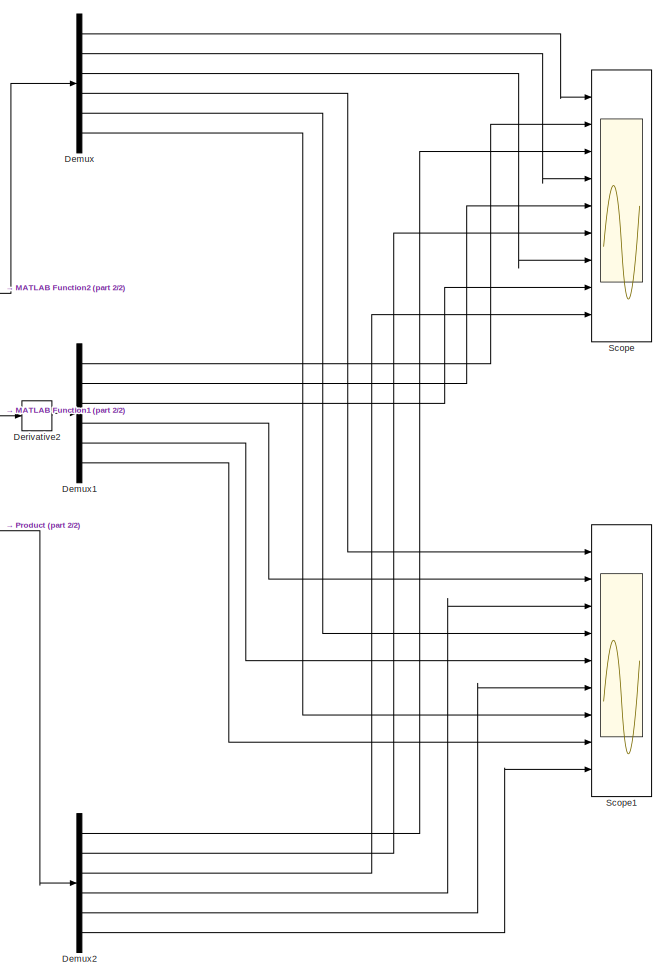
[diagram: root canvas - part 1/2, right side, full height]
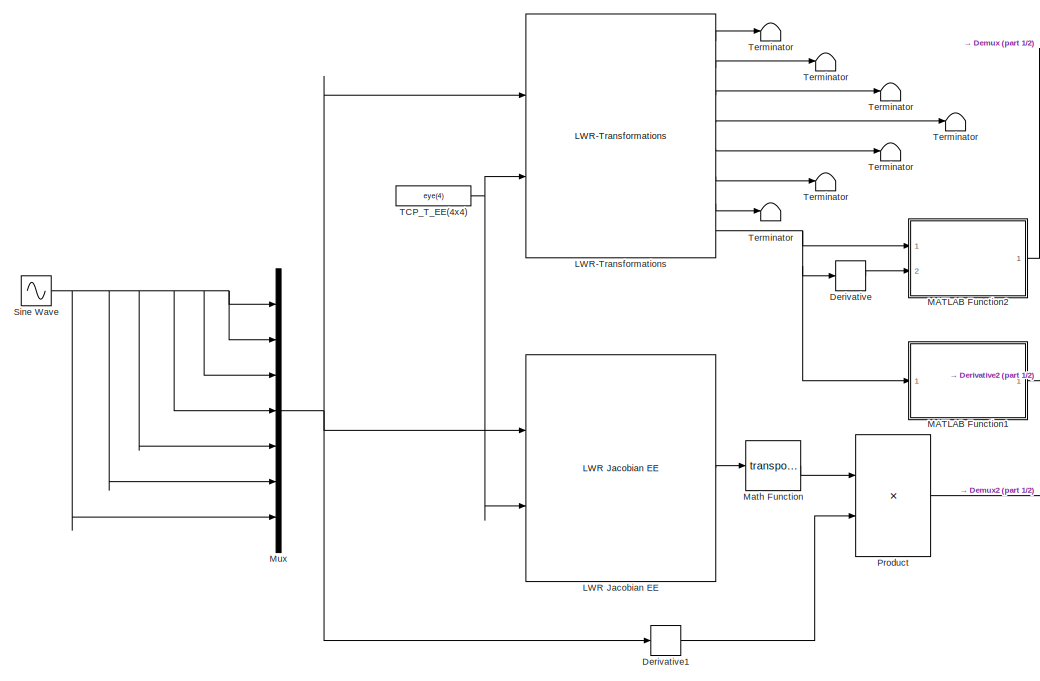
[diagram: root canvas - part 2/2, middle left region]
MODEL slx_8157c431108a
KIND model
CONFIG AbsTol = auto
CONFIG FixedStep = 0.001
CONFIG MaxStep = auto
CONFIG MinStep = auto
CONFIG RelTol = 1e-3
CONFIG SampleTimeConstraint = Unconstrained
CONFIG Solver = ode4
CONFIG SolverMode = Auto
CONFIG SolverName = ode4
CONFIG StartTime = 0.0
CONFIG StopTime = 10.0
BLOCK [Demux] Demux
  DisplayOption = bar
  Outputs = 6
  Ports = [1, 6]
BLOCK [Demux] Demux1
  DisplayOption = bar
  Outputs = 6
  Ports = [1, 6]
BLOCK [Demux] Demux2
  DisplayOption = bar
  Outputs = 6
  Ports = [1, 6]
BLOCK [Derivative] Derivative
BLOCK [Derivative] Derivative1
BLOCK [Derivative] Derivative2
BLOCK [Reference] LWR Jacobian EE  REF=lwr_dynamics/Kinematics/LWR Jacobian EE  (lib defined in mdl_dee2bea1b5f3)
  Ports = [2, 1]
  SourceBlock = lwr_dynamics/Kinematics/LWR Jacobian EE
BLOCK [Reference] LWR-Transformations  REF=lwr_dynamics/Kinematics/LWR-Transformations  (lib defined in mdl_dee2bea1b5f3)
  Ports = [2, 8]
  SourceBlock = lwr_dynamics/Kinematics/LWR-Transformations
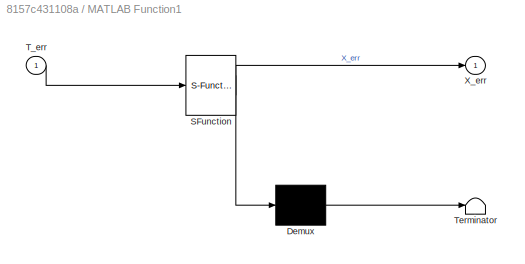
BLOCK [SubSystem] MATLAB Function1
  ErrorFcn = Stateflow.Translate.translate
  PermitHierarchicalResolution = ExplicitOnly
  Ports = [1, 1]
  RequestExecContextInheritance = off
  SFBlockType = MATLAB Function
  TreatAsAtomicUnit = on
  Variant = off
BLOCK [Demux] MATLAB Function1/ Demux 
  Outputs = 1
  Ports = [1, 1]
BLOCK [S-Function] MATLAB Function1/ SFunction 
  EnableBusSupport = on
  FunctionName = sf_sfun
  PortCounts = [1 2]
  Ports = [1, 2]
  SFunctionDeploymentMode = off
  Tag = Stateflow S-Function jacobianComparison 3
BLOCK [Terminator] MATLAB Function1/ Terminator 
BLOCK [Inport] MATLAB Function1/T_err
  IconDisplay = Port number
BLOCK [Outport] MATLAB Function1/X_err
  IconDisplay = Port number
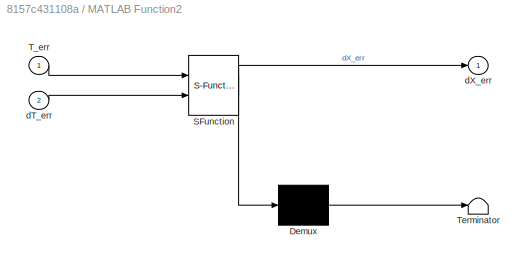
BLOCK [SubSystem] MATLAB Function2
  ErrorFcn = Stateflow.Translate.translate
  PermitHierarchicalResolution = ExplicitOnly
  Ports = [2, 1]
  RequestExecContextInheritance = off
  SFBlockType = MATLAB Function
  TreatAsAtomicUnit = on
  Variant = off
BLOCK [Demux] MATLAB Function2/ Demux 
  Outputs = 1
  Ports = [1, 1]
BLOCK [S-Function] MATLAB Function2/ SFunction 
  EnableBusSupport = on
  FunctionName = sf_sfun
  PortCounts = [2 2]
  Ports = [2, 2]
  SFunctionDeploymentMode = off
  Tag = Stateflow S-Function jacobianComparison 4
BLOCK [Terminator] MATLAB Function2/ Terminator 
BLOCK [Inport] MATLAB Function2/T_err
  IconDisplay = Port number
BLOCK [Inport] MATLAB Function2/dT_err
  IconDisplay = Port number
  Port = 2
BLOCK [Outport] MATLAB Function2/dX_err
  IconDisplay = Port number
BLOCK [Math] Math Function
  Operator = transpose
  Ports = [1, 1]
BLOCK [Mux] Mux
  DisplayOption = bar
  Inputs = 7
  Ports = [7, 1]
BLOCK [Product] Product
  InputSameDT = off
  Multiplication = Matrix(*)
  OutDataTypeStr = Inherit: Inherit via internal rule
  Ports = [2, 1]
  RndMeth = Floor
  SaturateOnIntegerOverflow = off
BLOCK [Scope] Scope
  NumInputPorts = 9
  Ports = [9]
  ScopeSpecificationString = Simulink.scopes.TimeScopeBlockCfg('CurrentConfiguration', extmgr.ConfigurationSet(extmgr.Configuration('Core','General UI',true),extmgr.Configuration('Core','Source UI',true),extmgr.Configuration('Sources','WiredSimulink',true,'DataLoggingSaveFormat','Array','DataLoggingDecimation','1'),extmgr.Configuration('Visuals','Time Domain',true,'SerializedDisplays',{struct('MinYLimReal','-0.61313','MaxYLim...<+7087ch>
BLOCK [Scope] Scope1
  NumInputPorts = 9
  Ports = [9]
  ScopeSpecificationString = Simulink.scopes.TimeScopeBlockCfg('CurrentConfiguration', extmgr.ConfigurationSet(extmgr.Configuration('Core','General UI',true),extmgr.Configuration('Core','Source UI',true),extmgr.Configuration('Sources','WiredSimulink',true,'DataLoggingSaveFormat','Array','DataLoggingDecimation','1','DataLoggingVariableName','ScopeData1','DataLoggingMaxPoints','500000'),extmgr.Configuration('Visuals','Time Doma...<+7194ch>
BLOCK [Sin] Sine Wave
  Bias = 0.1
  Ports = [0, 1]
  SampleTime = 0
BLOCK [Constant] TCP_T_EE(4x4)
  Value = eye(4)
BLOCK [Terminator] Terminator
BLOCK [Terminator] Terminator 
BLOCK [Terminator] Terminator  
BLOCK [Terminator] Terminator   
BLOCK [Terminator] Terminator    
BLOCK [Terminator] Terminator     
BLOCK [Terminator] Terminator      
LINE Demux1:1 -> Scope:2
LINE Demux1:2 -> Scope:5
LINE Demux1:3 -> Scope:8
LINE Demux1:4 -> Scope1:2
LINE Demux1:5 -> Scope1:5
LINE Demux1:6 -> Scope1:8
LINE Demux2:1 -> Scope:3
LINE Demux2:2 -> Scope:6
LINE Demux2:3 -> Scope:9
LINE Demux2:4 -> Scope1:3
LINE Demux2:5 -> Scope1:6
LINE Demux2:6 -> Scope1:9
LINE Demux:1 -> Scope:1
LINE Demux:2 -> Scope:4
LINE Demux:3 -> Scope:7
LINE Demux:4 -> Scope1:1
LINE Demux:5 -> Scope1:4
LINE Demux:6 -> Scope1:7
LINE Derivative1:1 -> Product:2
LINE Derivative2:1 -> Demux1:1
LINE Derivative:1 -> MATLAB Function2:2
LINE LWR Jacobian EE:1 -> Math Function:1
LINE LWR-Transformations:1 -> Terminator:1
LINE LWR-Transformations:2 -> Terminator :1
LINE LWR-Transformations:3 -> Terminator  :1
LINE LWR-Transformations:4 -> Terminator   :1
LINE LWR-Transformations:5 -> Terminator    :1
LINE LWR-Transformations:6 -> Terminator     :1
LINE LWR-Transformations:7 -> Terminator      :1
NET LWR-Transformations:8 -> Derivative:1, MATLAB Function1:1, MATLAB Function2:1
LINE MATLAB Function1:1 -> Derivative2:1
LINE MATLAB Function2:1 -> Demux:1
LINE Math Function:1 -> Product:1
NET Mux:1 -> Derivative1:1, LWR Jacobian EE:1, LWR-Transformations:1
LINE Product:1 -> Demux2:1
NET Sine Wave:1 -> Mux:1, Mux:2, Mux:3, Mux:4, Mux:5, Mux:6, Mux:7
NET TCP_T_EE(4x4):1 -> LWR Jacobian EE:2, LWR-Transformations:2
note: NET lines group one-source signal fan-out (src -> all destinations, sorted); 1:1 wires keep LINE
CHART MATLAB Function1 states=1 transitions=1
  STATE_LABEL 'eML_blk_kernel()'
  STATE_LABEL "SCRIPT:\nfunction X_err  = fcn(T_err)\n%#codegen\n\nX_err = [T_err(1:3,4);rotm2eul(T_err(1:3,1:3))'];"
CHART MATLAB Function2 states=1 transitions=1
  STATE_LABEL 'eML_blk_kernel()'
  STATE_LABEL "SCRIPT:\nfunction dX_err  = fcn(T_err, dT_err)\n%#codegen\n\nR_err = T_err(1:3,1:3);\ndR_err = dT_err(1:3,1:3);\ndP_err = dT_err(1:3,4);\nomega_str_err = dR_err*R_err';\ndX_err = [dP_err;-omega_str_err(2,3);omega_str_err(1,3);-omega_str_err(1,2)];"
